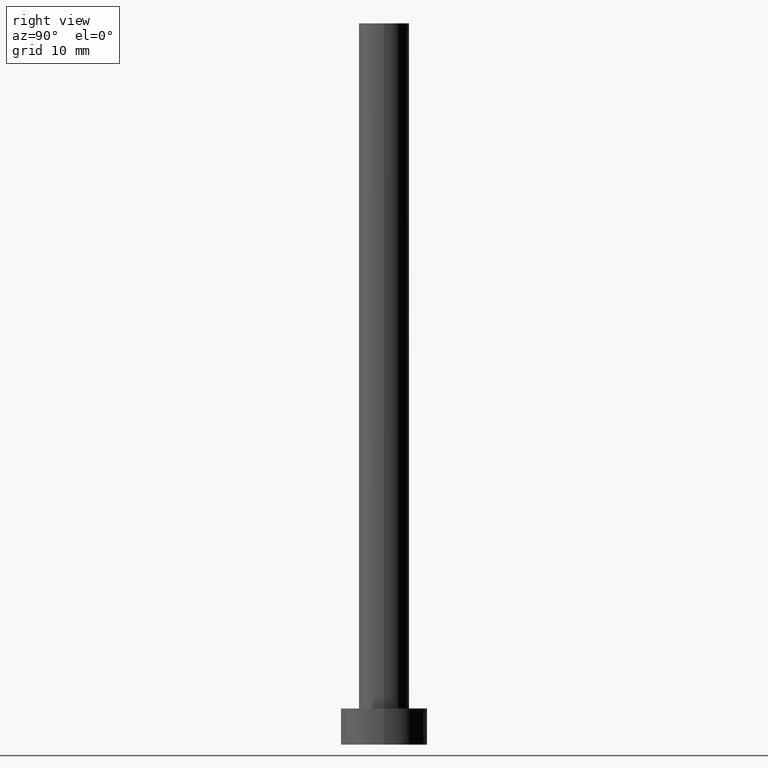
[diagram: clean part render]
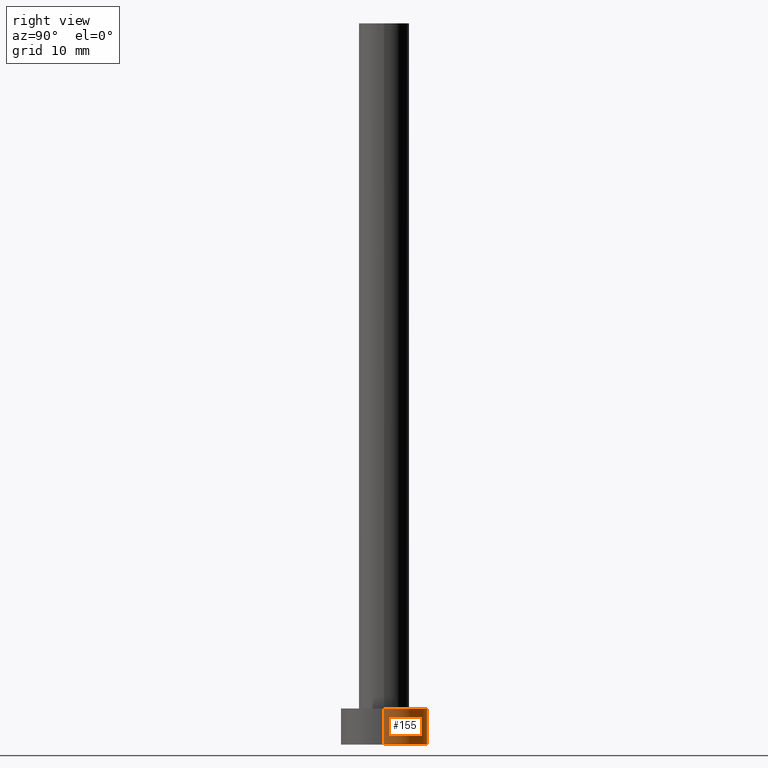
[diagram: same view with one face highlighted and labeled with its STEP entity id]
A machine part, right view. The second image highlights one B-rep face of the part: STEP entity #155.
In plain terms, the highlighted cylindrical surface (partial cylindrical patch) has radius 6 mm, axis along (-0, -0, -1).
Its self-contained STEP definition (entity closure, byte-faithful):
#13 = EDGE_CURVE ( 'NONE', #100, #122, #71, .T. ) ;
#15 = CARTESIAN_POINT ( 'NONE',  ( -6.000000000000000888, 0.000000000000000000, 5.000000000000000000 ) ) ;
#31 = DIRECTION ( 'NONE',  ( 0.000000000000000000, 0.000000000000000000, 1.000000000000000000 ) ) ;
#40 = EDGE_CURVE ( 'NONE', #100, #69, #131, .T. ) ;
#45 = EDGE_LOOP ( 'NONE', ( #124, #240, #66, #68 ) ) ;
#53 = DIRECTION ( 'NONE',  ( 1.000000000000000000, 0.000000000000000000, 0.000000000000000000 ) ) ;
#54 = AXIS2_PLACEMENT_3D ( 'NONE', #186, #31, #53 ) ;
#55 = DIRECTION ( 'NONE',  ( 1.000000000000000000, 0.000000000000000000, 0.000000000000000000 ) ) ;
#66 = ORIENTED_EDGE ( 'NONE', *, *, #196, .T. ) ;
#68 = ORIENTED_EDGE ( 'NONE', *, *, #181, .F. ) ;
#69 = VERTEX_POINT ( 'NONE', #150 ) ;
#71 = CIRCLE ( 'NONE', #54, 6.000000000000000888 ) ;
#72 = DIRECTION ( 'NONE',  ( -0.000000000000000000, -0.000000000000000000, -1.000000000000000000 ) ) ;
#73 = CARTESIAN_POINT ( 'NONE',  ( -6.000000000000000888, 0.000000000000000000, 0.000000000000000000 ) ) ;
#80 = AXIS2_PLACEMENT_3D ( 'NONE', #207, #190, #172 ) ;
#94 = CARTESIAN_POINT ( 'NONE',  ( 0.000000000000000000, 0.000000000000000000, 0.000000000000000000 ) ) ;
#100 = VERTEX_POINT ( 'NONE', #154 ) ;
#122 = VERTEX_POINT ( 'NONE', #235 ) ;
#124 = ORIENTED_EDGE ( 'NONE', *, *, #13, .F. ) ;
#131 = LINE ( 'NONE', #145, #151 ) ;
#132 = DIRECTION ( 'NONE',  ( -0.000000000000000000, -0.000000000000000000, -1.000000000000000000 ) ) ;
#133 = LINE ( 'NONE', #15, #185 ) ;
#145 = CARTESIAN_POINT ( 'NONE',  ( 6.000000000000000888, 7.347880794884120722E-16, 5.000000000000000000 ) ) ;
#149 = CYLINDRICAL_SURFACE ( 'NONE', #80, 6.000000000000000888 ) ;
#150 = CARTESIAN_POINT ( 'NONE',  ( 6.000000000000000888, 7.347880794884120722E-16, 0.000000000000000000 ) ) ;
#151 = VECTOR ( 'NONE', #72, 1000.000000000000000 ) ;
#154 = CARTESIAN_POINT ( 'NONE',  ( 6.000000000000000888, 7.347880794884120722E-16, 5.000000000000000000 ) ) ;
#155 = ADVANCED_FACE ( 'NONE', ( #156 ), #149, .T. ) ;
#156 = FACE_OUTER_BOUND ( 'NONE', #45, .T. ) ;
#169 = DIRECTION ( 'NONE',  ( 0.000000000000000000, 0.000000000000000000, 1.000000000000000000 ) ) ;
#172 = DIRECTION ( 'NONE',  ( -1.000000000000000000, 0.000000000000000000, 0.000000000000000000 ) ) ;
#179 = CIRCLE ( 'NONE', #216, 6.000000000000000888 ) ;
#181 = EDGE_CURVE ( 'NONE', #122, #225, #133, .T. ) ;
#185 = VECTOR ( 'NONE', #132, 1000.000000000000000 ) ;
#186 = CARTESIAN_POINT ( 'NONE',  ( 0.000000000000000000, 0.000000000000000000, 5.000000000000000000 ) ) ;
#190 = DIRECTION ( 'NONE',  ( -0.000000000000000000, -0.000000000000000000, -1.000000000000000000 ) ) ;
#196 = EDGE_CURVE ( 'NONE', #69, #225, #179, .T. ) ;
#207 = CARTESIAN_POINT ( 'NONE',  ( 0.000000000000000000, 0.000000000000000000, 5.000000000000000000 ) ) ;
#216 = AXIS2_PLACEMENT_3D ( 'NONE', #94, #169, #55 ) ;
#225 = VERTEX_POINT ( 'NONE', #73 ) ;
#235 = CARTESIAN_POINT ( 'NONE',  ( -6.000000000000000888, 0.000000000000000000, 5.000000000000000000 ) ) ;
#240 = ORIENTED_EDGE ( 'NONE', *, *, #40, .T. ) ;